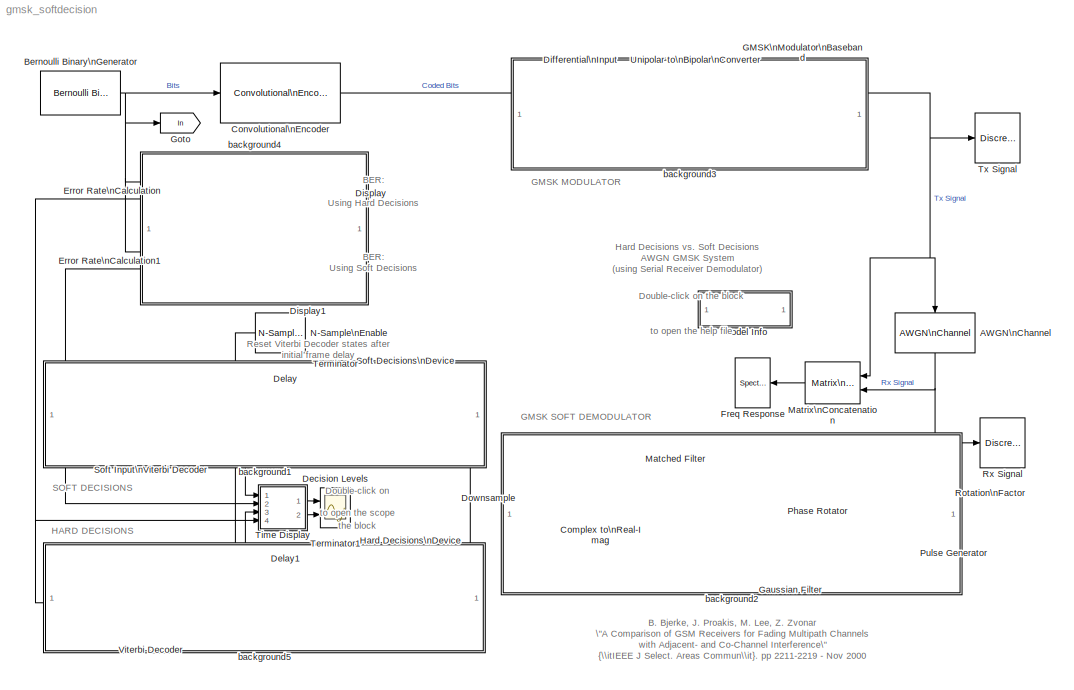
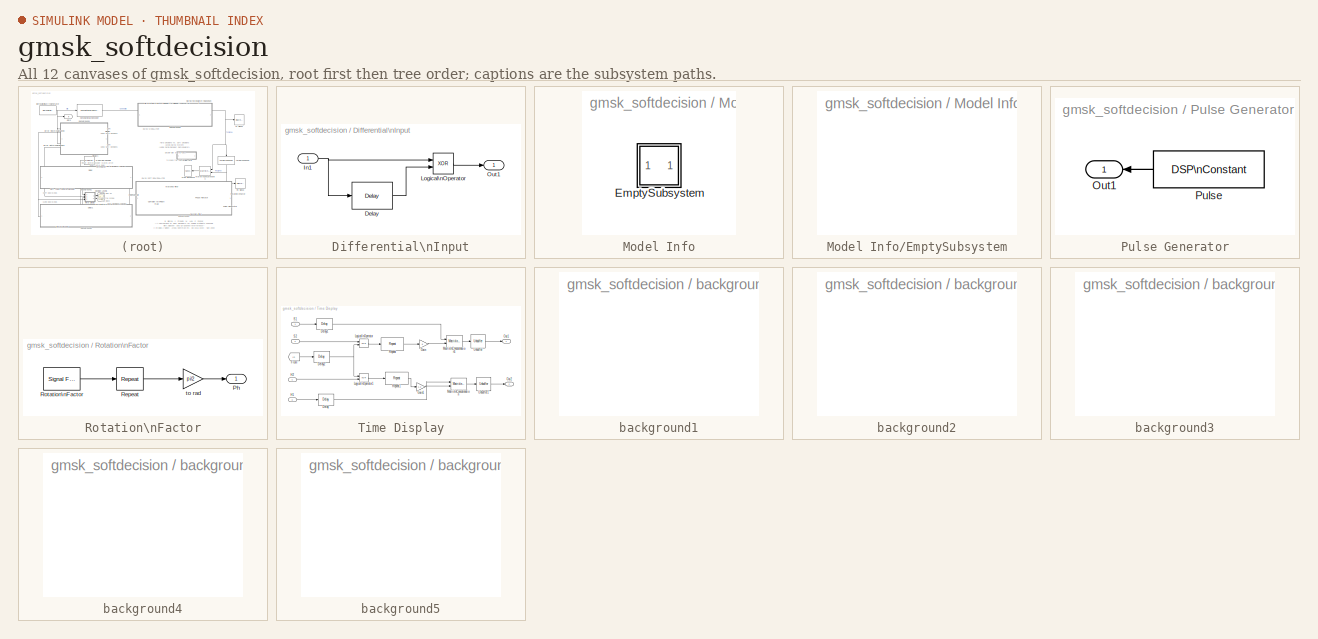
[diagram: thumbnail index - all 12 canvases of the model, root first then tree order]
MODEL gmsk_softdecision
KIND model
BLOCK [Reference] AWGN\nChannel  REF=commchan2/AWGN\nChannel
  EbNodB = 10
  EsNodB = 16
  Ports = [1, 1]
  Ps = 1
  SNRdB = 10
  ShowPortLabels = on
  SourceBlock = commchan2/AWGN\nChannel
  SourceType = AWGN Channel
  Tsym = 1
  bitsPerSym = 1
  noiseMode = Signal to noise ratio  (Es/No)
  seed = 67
  variance = 1
BLOCK [Reference] Bernoulli Binary\nGenerator  REF=commrandsrc2/Bernoulli Binary\nGenerator
  P = 0.5
  Ports = [0, 1]
  ShowPortLabels = on
  SourceBlock = commrandsrc2/Bernoulli Binary\nGenerator
  SourceType = Bernoulli Binary Generator
  Ts = 1/5
  frameBased = on
  orient = off
  sampPerFrame = 5
  seed = 61
BLOCK [ComplexToRealImag] Complex to\nReal-Imag
  Output = Real
  Ports = [1, 1]
BLOCK [Reference] Convolutional\nEncoder  REF=commcnvcod2/Convolutional\nEncoder
  Ports = [1, 1]
  SourceBlock = commcnvcod2/Convolutional\nEncoder
  SourceType = Convolutional Encoder
  reset = None
  trellis = poly2trellis(7, [171 133])
BLOCK [Scope] Decision Levels
  DataFormat = StructureWithTime
  NumInputPorts = 2
  Ports = [2]
  TimeRange = 35
  YMax = 8~1.2
  YMin = 0~0
  ZoomMode = xonly
BLOCK [Reference] Delay  REF=dspsigops/Delay
  Ports = [1, 1]
  SourceBlock = dspsigops/Delay
  SourceType = Delay
  delay = 5
  dif_ic_for_ch = off
  dif_ic_for_dly = off
  dly_unit = Samples
  ic = 0
  ic_detail = off
  reset_popup = None
BLOCK [Reference] Delay1  REF=dspsigops/Delay
  Ports = [1, 1]
  SourceBlock = dspsigops/Delay
  SourceType = Delay
  delay = 5
  dif_ic_for_ch = off
  dif_ic_for_dly = off
  dly_unit = Samples
  ic = 0
  ic_detail = off
  reset_popup = None
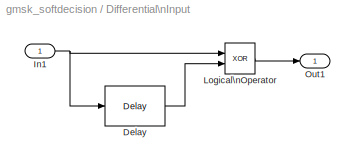
BLOCK [SubSystem] Differential\nInput
  MinAlgLoopOccurrences = off
  Ports = [1, 1]
  PropExecContextAcrossSSBoundary = on
  RTWSystemCode = Auto
  TreatAsAtomicUnit = off
BLOCK [Reference] Differential\nInput/Delay  REF=dspsigops/Delay
  Ports = [1, 1]
  SourceBlock = dspsigops/Delay
  SourceType = Delay
  delay = 1
  dif_ic_for_ch = off
  dif_ic_for_dly = off
  dly_unit = Samples
  ic = 0
  ic_detail = on
  reset_popup = None
BLOCK [Inport] Differential\nInput/In1
  IconDisplay = Port number
  LatchInput = off
BLOCK [Logic] Differential\nInput/Logical\nOperator
  AllPortsSameDT = off
  Operator = XOR
  Ports = [2, 1]
BLOCK [Outport] Differential\nInput/Out1
  BusOutputAsStruct = off
  IconDisplay = Port number
BLOCK [Display] Display
  Decimation = 1
  Ports = [1]
BLOCK [Display] Display1
  Decimation = 1
  Ports = [1]
BLOCK [Reference] Downsample  REF=dspsigops/Downsample
  N = 8
  Ports = [1, 1]
  SourceBlock = dspsigops/Downsample
  SourceType = Downsample
  fmode = Maintain input frame rate
  ic = 0
  phase = 0
  smode = Allow multirate
BLOCK [Reference] Error Rate\nCalculation  REF=commsink2/Error Rate\nCalculation
  N = 34+5
  PMode = Port
  Ports = [2, 1]
  RsMode2 = off
  SourceBlock = commsink2/Error Rate\nCalculation
  SourceType = Error Rate Calculation
  WsName = ErrorVec
  cp_mode = Entire frame
  maxBits = 1e4
  numErr = 1e2
  st_delay = 0
  stop = off
  subframe = []
BLOCK [Reference] Error Rate\nCalculation1  REF=commsink2/Error Rate\nCalculation
  N = 34+5
  PMode = Port
  Ports = [2, 1]
  RsMode2 = off
  SourceBlock = commsink2/Error Rate\nCalculation
  SourceType = Error Rate Calculation
  WsName = ErrorVec
  cp_mode = Entire frame
  maxBits = 1e6
  numErr = 100
  st_delay = 0
  stop = off
  subframe = []
BLOCK [Reference] Freq Response  REF=dspsnks4/Spectrum\nScope
  AxisGrid = on
  AxisLegend = on
  AxisProperties = off
  AxisZoom = off
  BufferSize = 128*4
  DisplayProperties = off
  Domain = Frequency
  FFTlength = 128
  FigPos = [229 398 381 306]
  FrameNumber = off
  HorizSpan = 1
  InheritXIncr = on
  LineColors = [0 0 0]|[1 0 0]
  LineProperties = off
  Memory = off
  OpenScopeAtSimStart = on
  OpenScopeImmediately = off
  Overlap = 48
  Ports = [1]
  ScopeProperties = on
  ShowPortLabels = off
  SourceBlock = dspsnks4/Spectrum\nScope
  SourceType = Spectrum Scope
  UseBuffer = on
  XIncr = 1.0
  XLabel = Samples
  XRange = [-Fs/2...Fs/2]
  XUnits = Hertz
  YLabel = Magnitude, dB
  YMax = 23.4309325701245
  YMin = -123.326456268335
  YUnits = dB
  inpFftLenInherit = off
  numAvg = 10
BLOCK [Reference] GMSK\nModulator\nBaseband  REF=commdigbbndcpm2/GMSK\nModulator\nBaseband
  BT = .3
  Ports = [1, 1]
  ShowPortLabels = on
  SourceBlock = commdigbbndcpm2/GMSK\nModulator\nBaseband
  SourceType = GMSK Modulator Baseband
  inputType = Integer
  phaseOffset = 0
  preHistory = 1
  pulseLength = 4
  samplesPerSymbol = 8
BLOCK [Reference] Gaussian Filter  REF=commfilt2/Gaussian Filter
  BT = 0.3
  D = 2
  N = 8
  Ports = [1, 1]
  ShowPortLabels = on
  SourceBlock = commfilt2/Gaussian Filter
  SourceType = Gaussian Filter
  checkCoeff = off
  filterGain = 1
  launchFVT = off
  normMode = Sum of coefficients
  sampMode = Frame-based
  variableName = gaussFilt2
BLOCK [Goto] Goto
  DialogController = Simulink.DDGSource
  GotoTag = In
  TagVisibility = global
BLOCK [Reference] Hard Decisions\nDevice  REF=commsrccod2/Quantizing\nEncoder
  Ports = [1, 2]
  ShowPortLabels = on
  SourceBlock = commsrccod2/Quantizing\nEncoder
  SourceType = Quantizing Encoder
  codebook = [1 0]
  partition = 0
BLOCK [Reference] Matched Filter  REF=dsparch4/Digital Filter
  AllPoleFiltStruct = Direct form
  BiQuadCoeffs = [1 0.3 0.4 1 0.1 0.2]
  CoeffSource = Input port(s)
  DenCoeffs = [1 0.1]
  DialogController = dspDDGCreate
  DialogControllerArgs = DataTag0
  FIRFiltStruct = Direct form
  FiltPerSampPopup = One filter per frame
  IC = 0
  ICden = 0
  ICnum = 0
  IIRFiltStruct = Direct form II transposed
  LatticeCoeffs = [0.2 0.4]
  LockScale = off
  NumCoeffs = [1 2]
  Ports = [2, 1]
  ScaleValues = 1
  SourceBlock = dsparch4/Digital Filter
  SourceType = Digital Filter
  TypePopup = FIR (all zeros)
  accumFracLength = 30
  accumMode = Same as product output
  accumWordLength = 32
  additionalParams = off
  allowOverrides = on
  denIgnore = on
  firstCoeffFracLength = 15
  firstCoeffMode = Same as input
  firstCoeffWordLength = 16
  memoryFracLength = 15
  memoryMode = Same as input
  memoryWordLength = 16
  outputFracLength = 15
  outputMode = Same as input
  outputWordLength = 16
  overflowMode = off
  prodOutputFracLength = 30
  prodOutputMode = Same as input
  prodOutputWordLength = 32
  roundingMode = Floor
  scaleValueFracLength = 14
  secondCoeffFracLength = 15
  secondCoeffMode = Same as numerator
  secondCoeffWordLength = 16
  showAcc = off
  showCoeff = off
  showMem = off
  showMpy = off
  showOut = off
  stageIOMode = Same as input
  stageIOWordLength = 16
  stageInFracLength = 15
  stageOutFracLength = 15
  tapSumFracLength = 30
  tapSumMode = Same as input
  tapSumWordLength = 32
  thirdCoeffFracLength = 15
  thirdCoeffMode = Same as input
  thirdCoeffWordLength = 16
BLOCK [Reference] Matrix\nConcatenation  REF=simulink/Math\nOperations/Matrix\nConcatenation
  Ports = [2, 1]
  SourceBlock = simulink/Math\nOperations/Matrix\nConcatenation
  SourceType = Matrix Concatenation
  catMethod = Horizontal
  numInports = 2
BLOCK [SubSystem] Model Info
  CopyFcn = slcm CopyBlock;
  DeleteFcn = slcm Cancel;
  InitFcn = slcm('UpdateAllCMBlocksInThisModelInit')
  LoadFcn = slcm LoadBlock;
  MaskCallbackString = ||||||||||||||||||||||||||||||
  MaskDescription = This block allows revision control information to be displayed within the model.
  MaskDisplay = text(str2num(LeftAlignmentValue), 0.5, MaskDisplayString, 'HorizontalAlignment', HorizontalTextAlignment)\n
  MaskEnableString = on,on,on,on,on,on,on,on,on,on,on,on,on,on,on,on,on,on,on,on,on,on,on,on,on,on,on,on,on,on,on
  MaskIconFrame = on
  MaskIconOpaque = on
  MaskIconRotate = none
  MaskIconUnits = normalized
  MaskPromptString = InitialSaveTempField|InitialBlockCM|BlockCM|Frame|SaveTempField|DisplayStringWithTags|MaskDisplayString|HorizontalTextAlignment|LeftAlignmentValue|SourceBlockDiagram|TagMaxNumber|CMTag1|CMTag2|CMTag3|CMTag4|CMTag5|CMTag6|CMTag7|CMTag8|CMTag9|CMTag10|CMTag11|CMTag12|CMTag13|CMTag14|CMTag15|CMTag16|CMTag17|CMTag18|CMTag19|CMTag20
  MaskSelfModifiable = on
  MaskStyleString = edit,edit,edit,edit,edit,edit,edit,edit,edit,edit,edit,edit,edit,edit,edit,edit,edit,edit,edit,edit,edit,edit,edit,edit,edit,edit,edit,edit,edit,edit,edit
  MaskTabNameString = ,,,,,,,,,,,,,,,,,,,,,,,,,,,,,,
  MaskToolTipString = on,on,on,on,on,on,on,on,on,on,on,on,on,on,on,on,on,on,on,on,on,on,on,on,on,on,on,on,on,on,on
  MaskTunableValueString = on,on,on,on,on,on,on,on,on,on,on,on,on,on,on,on,on,on,on,on,on,on,on,on,on,on,on,on,on,on,on
  MaskType = CMBlock
  MaskValueString = |None|None|on||Info|Info|Center|0.5|gmsk_softdecision|20||||||||||||||||||||
  MaskVarAliasString = ,,,,,,,,,,,,,,,,,,,,,,,,,,,,,,
  MaskVariables = InitialSaveTempField=&1;InitialBlockCM=&2;BlockCM=&3;Frame=&4;SaveTempField=&5;DisplayStringWithTags=&6;MaskDisplayString=&7;HorizontalTextAlignment=&8;LeftAlignmentValue=&9;SourceBlockDiagram=&10;TagMaxNumber=@11;CMTag1=&12;CMTag2=&13;CMTag3=&14;CMTag4=&15;CMTag5=&16;CMTag6=&17;CMTag7=&18;CMTag8=&19;CMTag9=&20;CMTag10=&21;CMTag11=&22;CMTag12=&23;CMTag13=&24;CMTag14=&25;CMTag15=&26;CMTag16=&27;CMT...<+45ch>
  MaskVisibilityString = off,off,off,off,off,off,off,off,off,off,off,off,off,off,off,off,off,off,off,off,off,off,off,off,off,off,off,off,off,off,off
  MinAlgLoopOccurrences = off
  NameChangeFcn = slcm Rename;
  OpenFcn = commdemohelp;
  Ports = []
  PostSaveFcn = slcm('UpdateAllCMBlocksInThisModel')
  PropExecContextAcrossSSBoundary = on
  RTWSystemCode = Auto
  TreatAsAtomicUnit = off
BLOCK [SubSystem] Model Info/EmptySubsystem
  MinAlgLoopOccurrences = off
  Ports = []
  PropExecContextAcrossSSBoundary = on
  RTWSystemCode = Auto
  TreatAsAtomicUnit = off
BLOCK [Reference] N-Sample\nEnable  REF=dspswit3/N-Sample\nEnable
  ActiveLevel = Low (0)
  DataType = Logical
  N = 1
  Ports = [0, 1]
  SourceBlock = dspswit3/N-Sample\nEnable
  SourceType = N-Sample Enable
  TriggerType = Rising edge
  Ts = 1
  reset = off
BLOCK [Reference] Phase Rotator  REF=commutil2/Complex Phase\nShift
  Ports = [2, 1]
  ShowPortLabels = on
  SourceBlock = commutil2/Complex Phase\nShift
  SourceType = Complex Phase Shift
BLOCK [SubSystem] Pulse Generator
  MaskDisplay = plot(0,0,45,100,[5 10 10 10 40],[0 0 60 0 0]+20)
  MaskIconFrame = on
  MaskIconOpaque = on
  MaskIconRotate = none
  MaskIconUnits = autoscale
  MinAlgLoopOccurrences = off
  Ports = [0, 1]
  PropExecContextAcrossSSBoundary = on
  RTWSystemCode = Auto
  TreatAsAtomicUnit = off
BLOCK [Outport] Pulse Generator/Out1
  BusOutputAsStruct = off
  IconDisplay = Port number
BLOCK [Reference] Pulse Generator/Pulse  REF=dspsrcs4/DSP\nConstant
  FramebasedOutput = -inf
  InterpretAs1D = -inf
  Ports = [0, 1]
  SampleMode = Discrete
  ShowPortLabels = on
  SourceBlock = dspsrcs4/DSP\nConstant
  SourceType = DSP Constant
  Ts = -inf
  Value = [1; zeros(32,1)]
  additionalParams = off
  allowOverrides = on
  continuousOutput = Sample-based
  dataType = Inherit from 'Constant value'
  discreteOutput = Frame-based
  fracBitsMode = Best precision
  framePeriod = 1
  isSigned = on
  numFracBits = 15
  sampTime = 1
  udDataType = sfix(16)
  wordLen = 16
BLOCK [SubSystem] Rotation\nFactor
  MinAlgLoopOccurrences = off
  Ports = [0, 1]
  PropExecContextAcrossSSBoundary = on
  RTWSystemCode = Auto
  TreatAsAtomicUnit = off
BLOCK [Outport] Rotation\nFactor/Ph
  BusOutputAsStruct = off
  IconDisplay = Port number
BLOCK [Reference] Rotation\nFactor/Repeat  REF=dspsigops/Repeat
  N = 8
  Ports = [1, 1]
  SourceBlock = dspsigops/Repeat
  SourceType = Repeat
  ic = 0
  mode = Maintain input frame rate
BLOCK [Reference] Rotation\nFactor/Rotation\nFactor  REF=dspsrcs4/Signal From\nWorkspace
  OutputAfterFinalValue = Cyclic repetition
  Ports = [0, 1]
  ShowPortLabels = on
  SourceBlock = dspsrcs4/Signal From\nWorkspace
  SourceType = Signal From Workspace
  Ts = 1/10
  X = [4:-1:1]
  nsamps = 10
BLOCK [Gain] Rotation\nFactor/to rad
  Gain = pi/2
BLOCK [Reference] Rx Signal  REF=commsink2/Discrete-Time\nScatter Plot\nScope
  AxisGrid = on
  FigPos = [619 138 268 268]
  FrameNumber = off
  LineColors = b
  LineMarkers = .
  Ports = [1]
  ShowPortLabels = on
  SourceBlock = commsink2/Discrete-Time\nScatter Plot\nScope
  SourceType = Discrete-Time Scatter Plot Scope
  Tag = ScatterPlot
  block_type_ = scatter
  fading = on
  figTitle = .
  inphaseLabel = .
  numLinesMax = 8
  numNewFrames = 10
  numTraces = 400
  offsetEye = 0
  openScopeAtSimStart = on
  quadratureLabel = .
  render = on
  sampPerSymb = 8
  xMax = 3.4540054001378
  xMin = -3.7226102881776
  yMax = 3.69117106581115
  yMin = -3.48544462250425
BLOCK [Reference] Soft Decisions\nDevice  REF=commsrccod2/Quantizing\nEncoder
  Ports = [1, 2]
  ShowPortLabels = on
  SourceBlock = commsrccod2/Quantizing\nEncoder
  SourceType = Quantizing Encoder
  codebook = [7 6 5 4 3 2 1 0]
  partition = [-.75 -.5 -.25 0 .25 .5 .75]
BLOCK [Reference] Soft Input\nViterbi Decoder  REF=commcnvcod2/Viterbi Decoder
  Ports = [2, 1]
  SourceBlock = commcnvcod2/Viterbi Decoder
  SourceType = Viterbi Decoder
  dectype = Soft Decision
  nsdecb = 3
  opmode = Continuous
  reset = on
  tbdepth = 34
  trellis = poly2trellis(7, [171 133])
BLOCK [Terminator] Terminator
BLOCK [Terminator] Terminator1
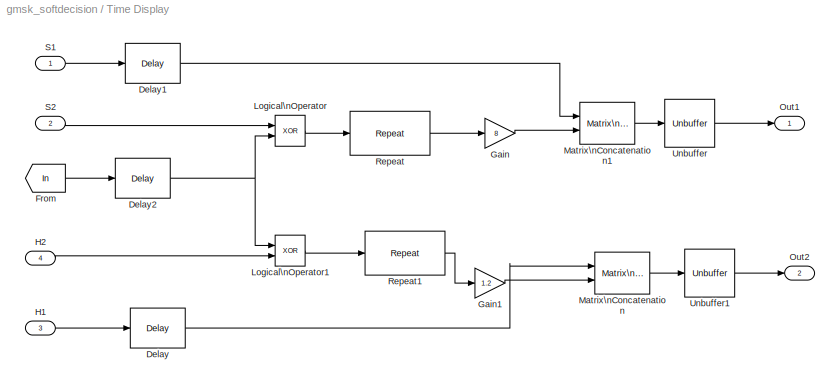
BLOCK [SubSystem] Time Display
  MinAlgLoopOccurrences = off
  Ports = [4, 2]
  PropExecContextAcrossSSBoundary = on
  RTWSystemCode = Auto
  TreatAsAtomicUnit = off
BLOCK [Reference] Time Display/Delay  REF=dspsigops/Delay
  Ports = [1, 1]
  SourceBlock = dspsigops/Delay
  SourceType = Delay
  delay = 34
  dif_ic_for_ch = off
  dif_ic_for_dly = off
  dly_unit = Samples
  ic = 0
  ic_detail = off
  reset_popup = None
BLOCK [Reference] Time Display/Delay1  REF=dspsigops/Delay
  Ports = [1, 1]
  SourceBlock = dspsigops/Delay
  SourceType = Delay
  delay = 34
  dif_ic_for_ch = off
  dif_ic_for_dly = off
  dly_unit = Samples
  ic = 0
  ic_detail = off
  reset_popup = None
BLOCK [Reference] Time Display/Delay2  REF=dspsigops/Delay
  Ports = [1, 1]
  SourceBlock = dspsigops/Delay
  SourceType = Delay
  delay = 34+5
  dif_ic_for_ch = off
  dif_ic_for_dly = off
  dly_unit = Samples
  ic = 0
  ic_detail = off
  reset_popup = None
BLOCK [From] Time Display/From
  CloseFcn = tagdialog Close
  DialogController = Simulink.DDGSource
  GotoTag = In
BLOCK [Gain] Time Display/Gain
  Gain = 8
  OutDataTypeMode = Inherit via internal rule
  ParameterDataTypeMode = Inherit via internal rule
  SaturateOnIntegerOverflow = off
BLOCK [Gain] Time Display/Gain1
  Gain = 1.2
  OutDataTypeMode = Inherit via internal rule
  ParameterDataTypeMode = Inherit via internal rule
  SaturateOnIntegerOverflow = off
BLOCK [Inport] Time Display/H1
  IconDisplay = Port number
  LatchInput = off
  Port = 3
BLOCK [Inport] Time Display/H2
  IconDisplay = Port number
  LatchInput = off
  Port = 4
BLOCK [Logic] Time Display/Logical\nOperator
  AllPortsSameDT = off
  Operator = XOR
  Ports = [2, 1]
BLOCK [Logic] Time Display/Logical\nOperator1
  AllPortsSameDT = off
  Operator = XOR
  Ports = [2, 1]
BLOCK [Reference] Time Display/Matrix\nConcatenation  REF=simulink/Math\nOperations/Matrix\nConcatenation
  Ports = [2, 1]
  SourceBlock = simulink/Math\nOperations/Matrix\nConcatenation
  SourceType = Matrix Concatenation
  catMethod = Horizontal
  numInports = 2
BLOCK [Reference] Time Display/Matrix\nConcatenation1  REF=simulink/Math\nOperations/Matrix\nConcatenation
  Ports = [2, 1]
  SourceBlock = simulink/Math\nOperations/Matrix\nConcatenation
  SourceType = Matrix Concatenation
  catMethod = Horizontal
  numInports = 2
BLOCK [Outport] Time Display/Out1
  BusOutputAsStruct = off
  IconDisplay = Port number
BLOCK [Outport] Time Display/Out2
  BusOutputAsStruct = off
  IconDisplay = Port number
  Port = 2
BLOCK [Reference] Time Display/Repeat  REF=commsequence2/Repeat
  N = 2
  Ports = [1, 1]
  SourceBlock = commsequence2/Repeat
  SourceType = Repeat
  ic = 0
  mode = Maintain input frame rate
BLOCK [Reference] Time Display/Repeat1  REF=commsequence2/Repeat
  N = 2
  Ports = [1, 1]
  SourceBlock = commsequence2/Repeat
  SourceType = Repeat
  ic = 0
  mode = Maintain input frame rate
BLOCK [Inport] Time Display/S1
  IconDisplay = Port number
  LatchInput = off
BLOCK [Inport] Time Display/S2
  IconDisplay = Port number
  LatchInput = off
  Port = 2
BLOCK [Reference] Time Display/Unbuffer  REF=dspbuff3/Unbuffer
  Ports = [1, 1]
  SourceBlock = dspbuff3/Unbuffer
  SourceType = Unbuffer
  ic = 0
BLOCK [Reference] Time Display/Unbuffer1  REF=dspbuff3/Unbuffer
  Ports = [1, 1]
  SourceBlock = dspbuff3/Unbuffer
  SourceType = Unbuffer
  ic = 0
BLOCK [Reference] Tx Signal  REF=commsink2/Discrete-Time\nScatter Plot\nScope
  AxisGrid = on
  FigPos = [618 456 268 268]
  FrameNumber = off
  LineColors = b
  LineMarkers = .
  Ports = [1]
  ShowPortLabels = on
  SourceBlock = commsink2/Discrete-Time\nScatter Plot\nScope
  SourceType = Discrete-Time Scatter Plot Scope
  Tag = ScatterPlot
  block_type_ = scatter
  fading = on
  figTitle = .
  inphaseLabel = .
  numLinesMax = 8
  numNewFrames = 10
  numTraces = 400
  offsetEye = 0
  openScopeAtSimStart = on
  quadratureLabel = .
  render = on
  sampPerSymb = 8
  xMax = 1.105
  xMin = -1.1
  yMax = 1.105
  yMin = -1.1
BLOCK [Reference] Unipolar to\nBipolar\nConverter  REF=commutil2/Unipolar to\nBipolar\nConverter
  M = 2
  Ports = [1, 1]
  ShowPortLabels = on
  SourceBlock = commutil2/Unipolar to\nBipolar\nConverter
  SourceType = Unipolar to Bipolar Converter
  polarity = Negative
BLOCK [Reference] Viterbi Decoder  REF=commcnvcod2/Viterbi Decoder
  Ports = [2, 1]
  SourceBlock = commcnvcod2/Viterbi Decoder
  SourceType = Viterbi Decoder
  dectype = Hard Decision
  nsdecb = 4
  opmode = Continuous
  reset = on
  tbdepth = 34
  trellis = poly2trellis(7, [171 133])
BLOCK [SubSystem] background1
  MaskDisplay = disp('')
  MaskIconFrame = on
  MaskIconOpaque = on
  MaskIconRotate = none
  MaskIconUnits = autoscale
  MinAlgLoopOccurrences = off
  Ports = []
  PropExecContextAcrossSSBoundary = on
  RTWSystemCode = Auto
  TreatAsAtomicUnit = off
BLOCK [SubSystem] background2
  MaskDisplay = disp('')
  MaskIconFrame = on
  MaskIconOpaque = on
  MaskIconRotate = none
  MaskIconUnits = autoscale
  MinAlgLoopOccurrences = off
  Ports = []
  PropExecContextAcrossSSBoundary = on
  RTWSystemCode = Auto
  TreatAsAtomicUnit = off
BLOCK [SubSystem] background3
  MaskDisplay = disp('')
  MaskIconFrame = on
  MaskIconOpaque = on
  MaskIconRotate = none
  MaskIconUnits = autoscale
  MinAlgLoopOccurrences = off
  Ports = []
  PropExecContextAcrossSSBoundary = on
  RTWSystemCode = Auto
  TreatAsAtomicUnit = off
BLOCK [SubSystem] background4
  MaskDisplay = disp('')
  MaskIconFrame = on
  MaskIconOpaque = on
  MaskIconRotate = none
  MaskIconUnits = autoscale
  MinAlgLoopOccurrences = off
  Ports = []
  PropExecContextAcrossSSBoundary = on
  RTWSystemCode = Auto
  TreatAsAtomicUnit = off
BLOCK [SubSystem] background5
  MaskDisplay = disp('')
  MaskIconFrame = on
  MaskIconOpaque = on
  MaskIconRotate = none
  MaskIconUnits = autoscale
  MinAlgLoopOccurrences = off
  Ports = []
  PropExecContextAcrossSSBoundary = on
  RTWSystemCode = Auto
  TreatAsAtomicUnit = off
ANNOTATION (root): B. Bjerke, J. Proakis, M. Lee, Z. Zvonar \n \"A Comparison of GSM Receivers for Fading Multipath Channels \nwith Adjacent- and Co-Channel Interference\" \n{\\itIEEE J Select. Areas Commun\\it}. pp 2211-2219 - Nov 2000
ANNOTATION (root): BER: \nUsing Hard Decisions
ANNOTATION (root): BER: \nUsing Soft Decisions
ANNOTATION (root): Double-click on the block\nto open the help file
ANNOTATION (root): Double-click on\nthe block\nto open the scope
ANNOTATION (root): GMSK MODULATOR
ANNOTATION (root): GMSK SOFT DEMODULATOR
ANNOTATION (root): HARD DECISIONS
ANNOTATION (root): Hard Decisions vs. Soft Decisions\nAWGN GMSK System\n(using Serial Receiver Demodulator)
ANNOTATION (root): Reset Viterbi Decoder states after\ninitial frame delay
ANNOTATION (root): SOFT DECISIONS
NET AWGN\nChannel:1 -> Matrix\nConcatenation:2, Phase Rotator:1, Rx Signal:1
NET Bernoulli Binary\nGenerator:1 -> Convolutional\nEncoder:1, Error Rate\nCalculation1:1, Error Rate\nCalculation:1, Goto:1
LINE Complex to\nReal-Imag:1 -> Downsample:1
LINE Convolutional\nEncoder:1 -> Differential\nInput:1
NET Delay1:1 -> Time Display:3, Viterbi Decoder:1
NET Delay:1 -> Soft Input\nViterbi Decoder:1, Time Display:1
LINE Differential\nInput/Delay:1 -> Differential\nInput/Logical\nOperator:2
NET Differential\nInput/In1:1 -> Differential\nInput/Delay:1, Differential\nInput/Logical\nOperator:1
LINE Differential\nInput/Logical\nOperator:1 -> Differential\nInput/Out1:1
LINE Differential\nInput:1 -> Unipolar to\nBipolar\nConverter:1
NET Downsample:1 -> Hard Decisions\nDevice:1, Soft Decisions\nDevice:1
LINE Error Rate\nCalculation1:1 -> Display1:1
LINE Error Rate\nCalculation:1 -> Display:1
NET GMSK\nModulator\nBaseband:1 -> AWGN\nChannel:1, Matrix\nConcatenation:1, Tx Signal:1
LINE Gaussian Filter:1 -> Matched Filter:2
LINE Hard Decisions\nDevice:1 -> Terminator1:1
LINE Hard Decisions\nDevice:2 -> Delay1:1
LINE Matched Filter:1 -> Complex to\nReal-Imag:1
LINE Matrix\nConcatenation:1 -> Freq Response:1
NET N-Sample\nEnable:1 -> Soft Input\nViterbi Decoder:2, Viterbi Decoder:2
LINE Phase Rotator:1 -> Matched Filter:1
LINE Pulse Generator/Pulse:1 -> Pulse Generator/Out1:1
LINE Pulse Generator:1 -> Gaussian Filter:1
LINE Rotation\nFactor/Repeat:1 -> Rotation\nFactor/to rad:1
LINE Rotation\nFactor/Rotation\nFactor:1 -> Rotation\nFactor/Repeat:1
LINE Rotation\nFactor/to rad:1 -> Rotation\nFactor/Ph:1
LINE Rotation\nFactor:1 -> Phase Rotator:2
LINE Soft Decisions\nDevice:1 -> Terminator:1
LINE Soft Decisions\nDevice:2 -> Delay:1
NET Soft Input\nViterbi Decoder:1 -> Error Rate\nCalculation1:2, Time Display:2
LINE Time Display/Delay1:1 -> Time Display/Matrix\nConcatenation1:1
NET Time Display/Delay2:1 -> Time Display/Logical\nOperator1:1, Time Display/Logical\nOperator:2
LINE Time Display/Delay:1 -> Time Display/Matrix\nConcatenation:1
LINE Time Display/From:1 -> Time Display/Delay2:1
LINE Time Display/Gain1:1 -> Time Display/Matrix\nConcatenation:2
LINE Time Display/Gain:1 -> Time Display/Matrix\nConcatenation1:2
LINE Time Display/H1:1 -> Time Display/Delay:1
LINE Time Display/H2:1 -> Time Display/Logical\nOperator1:2
LINE Time Display/Logical\nOperator1:1 -> Time Display/Repeat1:1
LINE Time Display/Logical\nOperator:1 -> Time Display/Repeat:1
LINE Time Display/Matrix\nConcatenation1:1 -> Time Display/Unbuffer:1
LINE Time Display/Matrix\nConcatenation:1 -> Time Display/Unbuffer1:1
LINE Time Display/Repeat1:1 -> Time Display/Gain1:1
LINE Time Display/Repeat:1 -> Time Display/Gain:1
LINE Time Display/S1:1 -> Time Display/Delay1:1
LINE Time Display/S2:1 -> Time Display/Logical\nOperator:1
LINE Time Display/Unbuffer1:1 -> Time Display/Out2:1
LINE Time Display/Unbuffer:1 -> Time Display/Out1:1
LINE Time Display:1 -> Decision Levels:1
LINE Time Display:2 -> Decision Levels:2
LINE Unipolar to\nBipolar\nConverter:1 -> GMSK\nModulator\nBaseband:1
NET Viterbi Decoder:1 -> Error Rate\nCalculation:2, Time Display:4
note: NET lines group one-source signal fan-out (src -> all destinations, sorted); 1:1 wires keep LINE
